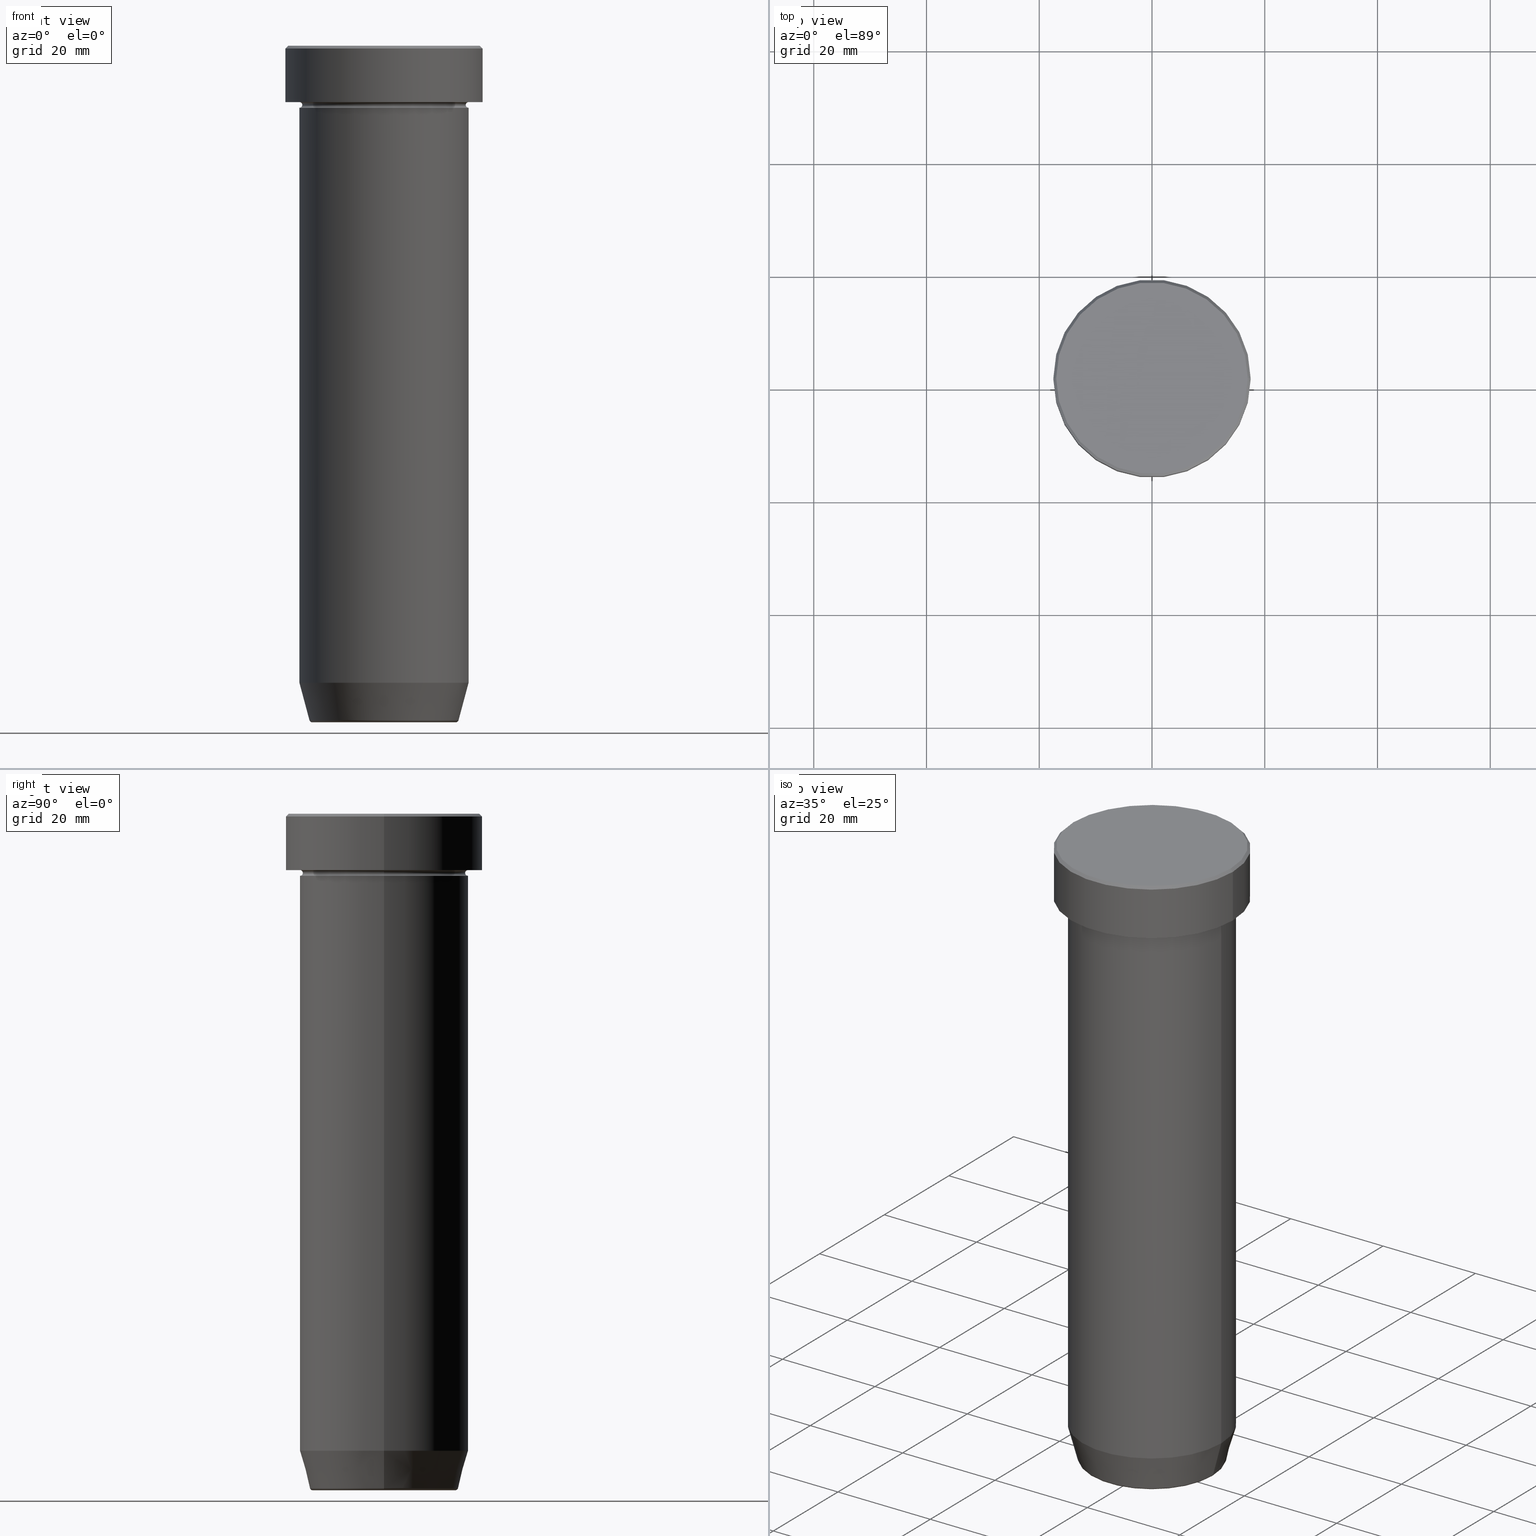
[diagram: canonical four-view strip — front | top / right | iso, engineering-drawing reading convention]
A machine part, canonical four-view strip (front | top / right | iso — engineering-drawing reading convention). The complete STEP part file that produces these views, byte-faithful:
ISO-10303-21;
HEADER;
FILE_DESCRIPTION (( 'STEP AP203' ),
    '1' );
FILE_NAME ('ea9e.STEP',
    '2024-01-02T17:39:11',
    ( '' ),
    ( '' ),
    'SwSTEP 2.0',
    'SolidWorks 2019',
    '' );
FILE_SCHEMA (( 'CONFIG_CONTROL_DESIGN' ));
ENDSEC;

DATA;
#1 = DIRECTION ( 'NONE',  ( -0.000000000000000000, -0.000000000000000000, 1.000000000000000000 ) ) ;
#2 = DIRECTION ( 'NONE',  ( 0.000000000000000000, 0.000000000000000000, -1.000000000000000000 ) ) ;
#3 = SECURITY_CLASSIFICATION ( '', '', #124 ) ;
#4 = FACE_OUTER_BOUND ( 'NONE', #442, .T. ) ;
#5 = DIRECTION ( 'NONE',  ( 1.000000000000000000, 0.000000000000000000, 0.000000000000000000 ) ) ;
#6 = ADVANCED_FACE ( 'NONE', ( #368 ), #462, .T. ) ;
#7 = CIRCLE ( 'NONE', #113, 15.00000000000000000 ) ;
#8 = LINE ( 'NONE', #46, #443 ) ;
#9 = CARTESIAN_POINT ( 'NONE',  ( 0.000000000000000000, 0.000000000000000000, -0.5000000000000073275 ) ) ;
#10 = DIRECTION ( 'NONE',  ( -0.000000000000000000, -0.000000000000000000, 1.000000000000000000 ) ) ;
#11 = ORIENTED_EDGE ( 'NONE', *, *, #263, .T. ) ;
#12 = CARTESIAN_POINT ( 'NONE',  ( 0.000000000000000000, 0.000000000000000000, -112.9999999999999858 ) ) ;
#13 = AXIS2_PLACEMENT_3D ( 'NONE', #510, #466, #228 ) ;
#14 = ADVANCED_FACE ( 'NONE', ( #175 ), #552, .T. ) ;
#15 = DIRECTION ( 'NONE',  ( 0.000000000000000000, 0.000000000000000000, -1.000000000000000000 ) ) ;
#16 = CIRCLE ( 'NONE', #95, 17.00000000000000000 ) ;
#17 = ORIENTED_EDGE ( 'NONE', *, *, #282, .T. ) ;
#18 = DIRECTION ( 'NONE',  ( -0.000000000000000000, -0.000000000000000000, 1.000000000000000000 ) ) ;
#19 =( LENGTH_UNIT ( ) NAMED_UNIT ( * ) SI_UNIT ( .MILLI., .METRE. ) );
#20 = EDGE_LOOP ( 'NONE', ( #216, #122 ) ) ;
#21 = LINE ( 'NONE', #348, #233 ) ;
#22 = PERSON_AND_ORGANIZATION_ROLE ( 'design_owner' ) ;
#23 = EDGE_LOOP ( 'NONE', ( #585, #475, #196, #404 ) ) ;
#24 = CIRCLE ( 'NONE', #471, 15.00000000000000000 ) ;
#25 = EDGE_CURVE ( 'NONE', #207, #68, #421, .T. ) ;
#26 = DIRECTION ( 'NONE',  ( -1.000000000000000000, 0.000000000000000000, 0.000000000000000000 ) ) ;
#27 = AXIS2_PLACEMENT_3D ( 'NONE', #509, #90, #597 ) ;
#28 = APPROVAL_DATE_TIME ( #396, #287 ) ;
#29 = EDGE_LOOP ( 'NONE', ( #447, #314 ) ) ;
#30 = DESIGN_CONTEXT ( 'detailed design', #569, 'design' ) ;
#31 = DIRECTION ( 'NONE',  ( -0.000000000000000000, -0.000000000000000000, 1.000000000000000000 ) ) ;
#32 = ORIENTED_EDGE ( 'NONE', *, *, #292, .F. ) ;
#33 = DATE_TIME_ROLE ( 'classification_date' ) ;
#34 = ORIENTED_EDGE ( 'NONE', *, *, #561, .F. ) ;
#35 = ORIENTED_EDGE ( 'NONE', *, *, #226, .F. ) ;
#36 = CALENDAR_DATE ( 2024, 2, 1 ) ;
#37 = VERTEX_POINT ( 'NONE', #85 ) ;
#38 = DIRECTION ( 'NONE',  ( -0.000000000000000000, -0.000000000000000000, 1.000000000000000000 ) ) ;
#39 = EDGE_CURVE ( 'NONE', #361, #207, #319, .T. ) ;
#40 = AXIS2_PLACEMENT_3D ( 'NONE', #337, #572, #417 ) ;
#41 = VECTOR ( 'NONE', #370, 1000.000000000000000 ) ;
#42 = ORIENTED_EDGE ( 'NONE', *, *, #408, .T. ) ;
#43 = CARTESIAN_POINT ( 'NONE',  ( -13.22365507213719660, 1.728200442216588780E-15, -119.6294095225512564 ) ) ;
#44 = EDGE_CURVE ( 'NONE', #157, #495, #176, .T. ) ;
#45 = CARTESIAN_POINT ( 'NONE',  ( 0.000000000000000000, 0.000000000000000000, 0.000000000000000000 ) ) ;
#46 = CARTESIAN_POINT ( 'NONE',  ( 15.00000000000000000, 0.000000000000000000, 0.000000000000000000 ) ) ;
#47 = FACE_BOUND ( 'NONE', #264, .T. ) ;
#48 = EDGE_CURVE ( 'NONE', #361, #157, #515, .T. ) ;
#49 = FACE_OUTER_BOUND ( 'NONE', #252, .T. ) ;
#50 = DIRECTION ( 'NONE',  ( -0.000000000000000000, -0.000000000000000000, 1.000000000000000000 ) ) ;
#51 = DIRECTION ( 'NONE',  ( 1.000000000000000000, 0.000000000000000000, 0.000000000000000000 ) ) ;
#52 = CLOSED_SHELL ( 'NONE', ( #84, #358, #474, #347, #14, #360, #367, #6, #179, #460, #104, #519, #193 ) ) ;
#53 = DIRECTION ( 'NONE',  ( -0.000000000000000000, -0.000000000000000000, 1.000000000000000000 ) ) ;
#54 = CC_DESIGN_PERSON_AND_ORGANIZATION_ASSIGNMENT ( #596, #221, ( #3 ) ) ;
#55 = ORIENTED_EDGE ( 'NONE', *, *, #485, .F. ) ;
#56 = PLANE ( 'NONE',  #145 ) ;
#57 = MECHANICAL_CONTEXT ( 'NONE', #448, 'mechanical' ) ;
#58 = LOCAL_TIME ( 18, 39, 11.00000000000000000, #351 ) ;
#59 = ORIENTED_EDGE ( 'NONE', *, *, #592, .F. ) ;
#60 = FACE_OUTER_BOUND ( 'NONE', #387, .T. ) ;
#61 = CARTESIAN_POINT ( 'NONE',  ( 0.000000000000000000, 0.000000000000000000, -10.49999999999999822 ) ) ;
#62 = ORIENTED_EDGE ( 'NONE', *, *, #573, .T. ) ;
#63 = AXIS2_PLACEMENT_3D ( 'NONE', #232, #420, #197 ) ;
#64 = AXIS2_PLACEMENT_3D ( 'NONE', #444, #31, #69 ) ;
#65 = CARTESIAN_POINT ( 'NONE',  ( -15.00000000000000000, 1.836970198721029589E-15, -11.00000000000000000 ) ) ;
#66 = CONICAL_SURFACE ( 'NONE', #567, 17.00000000000000000, 0.7853981633974415066 ) ;
#67 = PLANE ( 'NONE',  #289 ) ;
#68 = VERTEX_POINT ( 'NONE', #127 ) ;
#69 = DIRECTION ( 'NONE',  ( 1.000000000000000000, 0.000000000000000000, 0.000000000000000000 ) ) ;
#70 = EDGE_CURVE ( 'NONE', #207, #495, #140, .T. ) ;
#71 = CARTESIAN_POINT ( 'NONE',  ( 0.000000000000000000, 0.000000000000000000, 0.000000000000000000 ) ) ;
#72 = ORIENTED_EDGE ( 'NONE', *, *, #246, .F. ) ;
#73 = APPROVAL_PERSON_ORGANIZATION ( #258, #287, #446 ) ;
#74 = FACE_OUTER_BOUND ( 'NONE', #521, .T. ) ;
#75 = APPROVAL_DATE_TIME ( #210, #82 ) ;
#76 = ORIENTED_EDGE ( 'NONE', *, *, #582, .T. ) ;
#77 = DIRECTION ( 'NONE',  ( 1.000000000000000000, 0.000000000000000000, 0.000000000000000000 ) ) ;
#78 = EDGE_LOOP ( 'NONE', ( #83, #295, #538, #133 ) ) ;
#79 = COORDINATED_UNIVERSAL_TIME_OFFSET ( 1, 0, .AHEAD. ) ;
#80 = VERTEX_POINT ( 'NONE', #401 ) ;
#81 = CARTESIAN_POINT ( 'NONE',  ( -15.00000000000000000, 1.836970198721029589E-15, -10.49999999999999822 ) ) ;
#82 = APPROVAL ( #206, 'NEUR�EN�' ) ;
#83 = ORIENTED_EDGE ( 'NONE', *, *, #251, .F. ) ;
#84 = ADVANCED_FACE ( 'NONE', ( #313 ), #309, .T. ) ;
#85 = CARTESIAN_POINT ( 'NONE',  ( 17.50000000000000000, 0.000000000000000000, -9.999999999999998224 ) ) ;
#86 = DIRECTION ( 'NONE',  ( 1.000000000000000000, 0.000000000000000000, 0.000000000000000000 ) ) ;
#87 = TOROIDAL_SURFACE ( 'NONE', #323, 12.74069215899265473, 0.5000000000000000000 ) ;
#88 = SHAPE_DEFINITION_REPRESENTATION ( #237, #326 ) ;
#89 = AXIS2_PLACEMENT_3D ( 'NONE', #413, #2, #142 ) ;
#90 = DIRECTION ( 'NONE',  ( -0.000000000000000000, -0.000000000000000000, 1.000000000000000000 ) ) ;
#91 = EDGE_CURVE ( 'NONE', #102, #37, #394, .T. ) ;
#92 = CC_DESIGN_PERSON_AND_ORGANIZATION_ASSIGNMENT ( #265, #311, ( #141 ) ) ;
#93 = CARTESIAN_POINT ( 'NONE',  ( -17.50000000000000000, 2.143131898507868248E-15, -0.5000000000000073275 ) ) ;
#94 = CARTESIAN_POINT ( 'NONE',  ( 15.00000000000000000, 0.000000000000000000, -36.00000000000000000 ) ) ;
#95 = AXIS2_PLACEMENT_3D ( 'NONE', #280, #410, #511 ) ;
#96 = FACE_OUTER_BOUND ( 'NONE', #526, .T. ) ;
#97 = DIRECTION ( 'NONE',  ( 1.000000000000000000, 0.000000000000000000, 0.000000000000000000 ) ) ;
#98 = CARTESIAN_POINT ( 'NONE',  ( 0.000000000000000000, 0.000000000000000000, -36.00000000000000000 ) ) ;
#99 = DIRECTION ( 'NONE',  ( 0.000000000000000000, 0.000000000000000000, -1.000000000000000000 ) ) ;
#100 = AXIS2_PLACEMENT_3D ( 'NONE', #12, #380, #484 ) ;
#101 = CYLINDRICAL_SURFACE ( 'NONE', #40, 15.00000000000000000 ) ;
#102 = VERTEX_POINT ( 'NONE', #269 ) ;
#103 = AXIS2_PLACEMENT_3D ( 'NONE', #463, #329, #559 ) ;
#104 = ADVANCED_FACE ( 'NONE', ( #595 ), #591, .F. ) ;
#105 = ORIENTED_EDGE ( 'NONE', *, *, #331, .F. ) ;
#106 = DIRECTION ( 'NONE',  ( -0.000000000000000000, -0.000000000000000000, 1.000000000000000000 ) ) ;
#107 = LOCAL_TIME ( 18, 39, 11.00000000000000000, #79 ) ;
#108 = CIRCLE ( 'NONE', #315, 17.00000000000000000 ) ;
#109 = ORIENTED_EDGE ( 'NONE', *, *, #91, .T. ) ;
#110 = DIRECTION ( 'NONE',  ( -0.2588190451025210725, 3.169619151431769255E-17, 0.9659258262890680902 ) ) ;
#111 = APPLICATION_PROTOCOL_DEFINITION ( 'international standard', 'config_control_design', 1994, #569 ) ;
#112 = VERTEX_POINT ( 'NONE', #43 ) ;
#113 = AXIS2_PLACEMENT_3D ( 'NONE', #199, #386, #470 ) ;
#114 = EDGE_CURVE ( 'NONE', #530, #112, #327, .T. ) ;
#115 = CARTESIAN_POINT ( 'NONE',  ( 15.00000000000000000, 0.000000000000000000, -112.9999999999999858 ) ) ;
#116 = CIRCLE ( 'NONE', #190, 12.74069215899265473 ) ;
#117 = FACE_OUTER_BOUND ( 'NONE', #78, .T. ) ;
#118 = EDGE_CURVE ( 'NONE', #431, #435, #415, .T. ) ;
#119 = ORIENTED_EDGE ( 'NONE', *, *, #25, .F. ) ;
#120 = DIRECTION ( 'NONE',  ( 1.000000000000000000, 0.000000000000000000, 0.000000000000000000 ) ) ;
#121 = DIRECTION ( 'NONE',  ( -0.000000000000000000, -0.000000000000000000, 1.000000000000000000 ) ) ;
#122 = ORIENTED_EDGE ( 'NONE', *, *, #226, .T. ) ;
#123 = CARTESIAN_POINT ( 'NONE',  ( 17.00000000000000000, 2.081899558550500280E-15, 0.000000000000000000 ) ) ;
#124 = SECURITY_CLASSIFICATION_LEVEL ( 'unclassified' ) ;
#125 = ORIENTED_EDGE ( 'NONE', *, *, #599, .F. ) ;
#126 = VECTOR ( 'NONE', #350, 1000.000000000000000 ) ;
#127 = CARTESIAN_POINT ( 'NONE',  ( -15.00000000000000000, 0.000000000000000000, -9.999999999999998224 ) ) ;
#128 = APPROVAL_STATUS ( 'not_yet_approved' ) ;
#129 = EDGE_CURVE ( 'NONE', #218, #435, #225, .T. ) ;
#130 = ORIENTED_EDGE ( 'NONE', *, *, #160, .F. ) ;
#131 = DIRECTION ( 'NONE',  ( -0.000000000000000000, -0.000000000000000000, 1.000000000000000000 ) ) ;
#132 = APPROVAL_STATUS ( 'not_yet_approved' ) ;
#133 = ORIENTED_EDGE ( 'NONE', *, *, #282, .F. ) ;
#134 = CIRCLE ( 'NONE', #399, 0.5000000000000004441 ) ;
#135 = CARTESIAN_POINT ( 'NONE',  ( 15.00000000000000000, 0.000000000000000000, -10.49999999999999822 ) ) ;
#136 = DATE_AND_TIME ( #584, #58 ) ;
#137 = DIRECTION ( 'NONE',  ( -0.000000000000000000, -1.000000000000000000, -0.000000000000000000 ) ) ;
#138 = VECTOR ( 'NONE', #494, 1000.000000000000000 ) ;
#139 = PERSON_AND_ORGANIZATION_ROLE ( 'creator' ) ;
#140 = CIRCLE ( 'NONE', #473, 0.5000000000000004441 ) ;
#141 = PRODUCT_DEFINITION ( 'NEZN�M�', '', #452, #30 ) ;
#142 = DIRECTION ( 'NONE',  ( -1.000000000000000000, 0.000000000000000000, -0.000000000000000000 ) ) ;
#143 = CARTESIAN_POINT ( 'NONE',  ( -14.49999999999999822, 1.806354028742345802E-15, -10.49999999999999822 ) ) ;
#144 = DIRECTION ( 'NONE',  ( -0.000000000000000000, -0.000000000000000000, 1.000000000000000000 ) ) ;
#145 = AXIS2_PLACEMENT_3D ( 'NONE', #155, #333, #522 ) ;
#146 = CONICAL_SURFACE ( 'NONE', #185, 13.12435565298213547, 0.2617993877991497964 ) ;
#147 = EDGE_CURVE ( 'NONE', #152, #593, #208, .T. ) ;
#148 = AXIS2_PLACEMENT_3D ( 'NONE', #217, #131, #499 ) ;
#149 = CARTESIAN_POINT ( 'NONE',  ( -12.74069215899265473, 1.560284787143213506E-15, -119.5000000000000000 ) ) ;
#150 = PLANE ( 'NONE',  #63 ) ;
#151 = CARTESIAN_POINT ( 'NONE',  ( 0.000000000000000000, 0.000000000000000000, -36.00000000000000000 ) ) ;
#152 = VERTEX_POINT ( 'NONE', #93 ) ;
#153 = FACE_OUTER_BOUND ( 'NONE', #20, .T. ) ;
#154 = CARTESIAN_POINT ( 'NONE',  ( -15.00000000000000000, 1.836970198721029589E-15, -36.00000000000000000 ) ) ;
#155 = CARTESIAN_POINT ( 'NONE',  ( 0.000000000000000000, 0.000000000000000000, -36.00000000000000000 ) ) ;
#156 = DIRECTION ( 'NONE',  ( -0.000000000000000000, -0.000000000000000000, 1.000000000000000000 ) ) ;
#157 = VERTEX_POINT ( 'NONE', #275 ) ;
#158 = LINE ( 'NONE', #422, #456 ) ;
#159 = AXIS2_PLACEMENT_3D ( 'NONE', #71, #525, #302 ) ;
#160 = EDGE_CURVE ( 'NONE', #236, #157, #8, .T. ) ;
#161 = ORIENTED_EDGE ( 'NONE', *, *, #402, .F. ) ;
#162 = DIRECTION ( 'NONE',  ( -0.000000000000000000, -0.000000000000000000, 1.000000000000000000 ) ) ;
#163 = EDGE_LOOP ( 'NONE', ( #312, #581, #261, #586 ) ) ;
#164 = CONICAL_SURFACE ( 'NONE', #244, 13.12435565298213547, 0.2617993877991497964 ) ;
#165 = CARTESIAN_POINT ( 'NONE',  ( 12.74069215899265473, 0.000000000000000000, -120.0000000000000000 ) ) ;
#166 = APPROVAL_ROLE ( '' ) ;
#167 = ORIENTED_EDGE ( 'NONE', *, *, #183, .F. ) ;
#168 = DIRECTION ( 'NONE',  ( 1.000000000000000000, 0.000000000000000000, 0.000000000000000000 ) ) ;
#169 = PERSON_AND_ORGANIZATION ( #441, #451 ) ;
#170 = ORIENTED_EDGE ( 'NONE', *, *, #44, .F. ) ;
#171 = ORIENTED_EDGE ( 'NONE', *, *, #582, .F. ) ;
#172 = PERSON_AND_ORGANIZATION ( #441, #451 ) ;
#173 = ORIENTED_EDGE ( 'NONE', *, *, #118, .T. ) ;
#174 = AXIS2_PLACEMENT_3D ( 'NONE', #476, #99, #283 ) ;
#175 = FACE_OUTER_BOUND ( 'NONE', #536, .T. ) ;
#176 = CIRCLE ( 'NONE', #27, 15.00000000000000000 ) ;
#177 = EDGE_LOOP ( 'NONE', ( #105, #498, #55, #34 ) ) ;
#178 = DIRECTION ( 'NONE',  ( 0.000000000000000000, 0.000000000000000000, -1.000000000000000000 ) ) ;
#179 = ADVANCED_FACE ( 'NONE', ( #47, #96 ), #227, .T. ) ;
#180 = DIRECTION ( 'NONE',  ( -0.000000000000000000, -0.000000000000000000, 1.000000000000000000 ) ) ;
#181 = DIRECTION ( 'NONE',  ( 1.000000000000000000, 0.000000000000000000, 0.000000000000000000 ) ) ;
#182 = FACE_OUTER_BOUND ( 'NONE', #376, .T. ) ;
#183 = EDGE_CURVE ( 'NONE', #207, #361, #346, .T. ) ;
#184 = CARTESIAN_POINT ( 'NONE',  ( 0.000000000000000000, 0.000000000000000000, -112.9999999999999858 ) ) ;
#185 = AXIS2_PLACEMENT_3D ( 'NONE', #297, #209, #77 ) ;
#186 = DIRECTION ( 'NONE',  ( -0.000000000000000000, -0.000000000000000000, 1.000000000000000000 ) ) ;
#187 = AXIS2_PLACEMENT_3D ( 'NONE', #151, #560, #5 ) ;
#188 = VECTOR ( 'NONE', #110, 1000.000000000000114 ) ;
#189 = CC_DESIGN_PERSON_AND_ORGANIZATION_ASSIGNMENT ( #169, #542, ( #452 ) ) ;
#190 = AXIS2_PLACEMENT_3D ( 'NONE', #371, #419, #514 ) ;
#191 = DIRECTION ( 'NONE',  ( -0.000000000000000000, -0.000000000000000000, 1.000000000000000000 ) ) ;
#192 = ORIENTED_EDGE ( 'NONE', *, *, #402, .T. ) ;
#193 = ADVANCED_FACE ( 'NONE', ( #4 ), #66, .T. ) ;
#194 = DIRECTION ( 'NONE',  ( 1.000000000000000000, 0.000000000000000000, 0.000000000000000000 ) ) ;
#195 = DIRECTION ( 'NONE',  ( 1.000000000000000000, 0.000000000000000000, 0.000000000000000000 ) ) ;
#196 = ORIENTED_EDGE ( 'NONE', *, *, #549, .F. ) ;
#197 = DIRECTION ( 'NONE',  ( 1.000000000000000000, 0.000000000000000000, 0.000000000000000000 ) ) ;
#198 = CARTESIAN_POINT ( 'NONE',  ( 0.000000000000000000, 0.000000000000000000, -11.00000000000000000 ) ) ;
#199 = CARTESIAN_POINT ( 'NONE',  ( 0.000000000000000000, 0.000000000000000000, -9.999999999999998224 ) ) ;
#200 = DIRECTION ( 'NONE',  ( -0.7071067811865426878, 0.000000000000000000, -0.7071067811865524577 ) ) ;
#201 = ORIENTED_EDGE ( 'NONE', *, *, #147, .T. ) ;
#202 = CARTESIAN_POINT ( 'NONE',  ( 0.000000000000000000, 0.000000000000000000, -119.6294095225512564 ) ) ;
#203 = CARTESIAN_POINT ( 'NONE',  ( 12.74069215899265473, 0.000000000000000000, -119.5000000000000000 ) ) ;
#204 = CC_DESIGN_APPROVAL ( #414, ( #3 ) ) ;
#205 = EDGE_LOOP ( 'NONE', ( #211, #286 ) ) ;
#206 = APPROVAL_STATUS ( 'not_yet_approved' ) ;
#207 = VERTEX_POINT ( 'NONE', #143 ) ;
#208 = CIRCLE ( 'NONE', #103, 17.50000000000000000 ) ;
#209 = DIRECTION ( 'NONE',  ( -0.000000000000000000, -0.000000000000000000, 1.000000000000000000 ) ) ;
#210 = DATE_AND_TIME ( #455, #321 ) ;
#211 = ORIENTED_EDGE ( 'NONE', *, *, #505, .F. ) ;
#212 = MANIFOLD_SOLID_BREP ( 'Zaoblit4', #356 ) ;
#213 = CARTESIAN_POINT ( 'NONE',  ( -13.12435565298213547, 1.607270014129604385E-15, -120.0000000000000000 ) ) ;
#214 = VERTEX_POINT ( 'NONE', #322 ) ;
#215 = APPROVAL_ROLE ( '' ) ;
#216 = ORIENTED_EDGE ( 'NONE', *, *, #512, .T. ) ;
#217 = CARTESIAN_POINT ( 'NONE',  ( 0.000000000000000000, 0.000000000000000000, 0.000000000000000000 ) ) ;
#218 = VERTEX_POINT ( 'NONE', #277 ) ;
#219 = TOROIDAL_SURFACE ( 'NONE', #403, 15.00000000000000000, 0.5000000000000000000 ) ;
#220 = DIRECTION ( 'NONE',  ( 0.000000000000000000, 0.000000000000000000, -1.000000000000000000 ) ) ;
#221 = PERSON_AND_ORGANIZATION_ROLE ( 'classification_officer' ) ;
#222 = ORIENTED_EDGE ( 'NONE', *, *, #573, .F. ) ;
#223 = CARTESIAN_POINT ( 'NONE',  ( 0.000000000000000000, 0.000000000000000000, -10.49999999999999822 ) ) ;
#224 = DIRECTION ( 'NONE',  ( 0.000000000000000000, 0.000000000000000000, -1.000000000000000000 ) ) ;
#225 = CIRCLE ( 'NONE', #276, 15.00000000000000000 ) ;
#226 = EDGE_CURVE ( 'NONE', #339, #478, #16, .T. ) ;
#227 = PLANE ( 'NONE',  #89 ) ;
#228 = DIRECTION ( 'NONE',  ( -1.000000000000000000, -1.224646799147349509E-16, 0.000000000000000000 ) ) ;
#229 = DIRECTION ( 'NONE',  ( 0.000000000000000000, 0.000000000000000000, -1.000000000000000000 ) ) ;
#230 = CARTESIAN_POINT ( 'NONE',  ( 0.000000000000000000, 0.000000000000000000, -10.49999999999999822 ) ) ;
#231 = TOROIDAL_SURFACE ( 'NONE', #325, 12.74069215899265473, 0.5000000000000000000 ) ;
#232 = CARTESIAN_POINT ( 'NONE',  ( 0.000000000000000000, 0.000000000000000000, 0.000000000000000000 ) ) ;
#233 = VECTOR ( 'NONE', #537, 1000.000000000000114 ) ;
#234 = ADVANCED_FACE ( 'NONE', ( #182 ), #320, .T. ) ;
#235 = CARTESIAN_POINT ( 'NONE',  ( 0.000000000000000000, 0.000000000000000000, -120.0000000000000000 ) ) ;
#236 = VERTEX_POINT ( 'NONE', #94 ) ;
#237 = PRODUCT_DEFINITION_SHAPE ( 'NONE', 'NONE',  #141 ) ;
#238 = FACE_OUTER_BOUND ( 'NONE', #177, .T. ) ;
#239 = TOROIDAL_SURFACE ( 'NONE', #364, 15.00000000000000000, 0.5000000000000000000 ) ;
#240 = LINE ( 'NONE', #392, #281 ) ;
#241 = CC_DESIGN_DATE_AND_TIME_ASSIGNMENT ( #507, #33, ( #3 ) ) ;
#242 = CARTESIAN_POINT ( 'NONE',  ( 14.49999999999999822, 0.000000000000000000, -10.49999999999999822 ) ) ;
#243 = LINE ( 'NONE', #427, #262 ) ;
#244 = AXIS2_PLACEMENT_3D ( 'NONE', #520, #53, #472 ) ;
#245 = ORIENTED_EDGE ( 'NONE', *, *, #433, .F. ) ;
#246 = EDGE_CURVE ( 'NONE', #459, #530, #116, .T. ) ;
#247 = FACE_OUTER_BOUND ( 'NONE', #310, .T. ) ;
#248 = DIRECTION ( 'NONE',  ( 0.000000000000000000, 0.000000000000000000, -1.000000000000000000 ) ) ;
#249 = DIRECTION ( 'NONE',  ( 1.000000000000000000, 0.000000000000000000, 0.000000000000000000 ) ) ;
#250 = LINE ( 'NONE', #439, #138 ) ;
#251 = EDGE_CURVE ( 'NONE', #361, #405, #535, .T. ) ;
#252 = EDGE_LOOP ( 'NONE', ( #453, #72, #354, #125 ) ) ;
#253 = UNCERTAINTY_MEASURE_WITH_UNIT (LENGTH_MEASURE( 1.000000000000000082E-05 ), #19, 'distance_accuracy_value', 'NONE');
#254 = AXIS2_PLACEMENT_3D ( 'NONE', #271, #38, #409 ) ;
#255 = CC_DESIGN_DATE_AND_TIME_ASSIGNMENT ( #136, #363, ( #141 ) ) ;
#256 = CYLINDRICAL_SURFACE ( 'NONE', #64, 15.00000000000000000 ) ;
#257 = ORIENTED_EDGE ( 'NONE', *, *, #292, .T. ) ;
#258 = PERSON_AND_ORGANIZATION ( #441, #451 ) ;
#259 = ORIENTED_EDGE ( 'NONE', *, *, #433, .T. ) ;
#260 = CARTESIAN_POINT ( 'NONE',  ( -15.00000000000000000, 0.000000000000000000, -10.49999999999999822 ) ) ;
#261 = ORIENTED_EDGE ( 'NONE', *, *, #48, .T. ) ;
#262 = VECTOR ( 'NONE', #481, 1000.000000000000000 ) ;
#263 = EDGE_CURVE ( 'NONE', #80, #431, #508, .T. ) ;
#264 = EDGE_LOOP ( 'NONE', ( #259, #17 ) ) ;
#265 = PERSON_AND_ORGANIZATION ( #441, #451 ) ;
#266 = TOROIDAL_SURFACE ( 'NONE', #554, 15.00000000000000000, 0.5000000000000000000 ) ;
#267 = AXIS2_PLACEMENT_3D ( 'NONE', #279, #10, #565 ) ;
#268 = CIRCLE ( 'NONE', #344, 13.22365507213719482 ) ;
#269 = CARTESIAN_POINT ( 'NONE',  ( -17.50000000000000000, 2.143131898507868248E-15, -9.999999999999998224 ) ) ;
#270 = PERSON_AND_ORGANIZATION ( #441, #451 ) ;
#271 = CARTESIAN_POINT ( 'NONE',  ( 0.000000000000000000, 0.000000000000000000, -10.49999999999999822 ) ) ;
#272 = DIRECTION ( 'NONE',  ( 1.000000000000000000, 0.000000000000000000, 0.000000000000000000 ) ) ;
#273 = ADVANCED_FACE ( 'NONE', ( #562 ), #56, .F. ) ;
#274 = AXIS2_PLACEMENT_3D ( 'NONE', #260, #137, #503 ) ;
#275 = CARTESIAN_POINT ( 'NONE',  ( 15.00000000000000000, 0.000000000000000000, -11.00000000000000000 ) ) ;
#276 = AXIS2_PLACEMENT_3D ( 'NONE', #98, #144, #324 ) ;
#277 = CARTESIAN_POINT ( 'NONE',  ( -15.00000000000000000, 1.836970198721029589E-15, -36.00000000000000000 ) ) ;
#278 = PRODUCT_RELATED_PRODUCT_CATEGORY ( 'detail', '', ( #377 ) ) ;
#279 = CARTESIAN_POINT ( 'NONE',  ( 0.000000000000000000, 0.000000000000000000, -9.999999999999998224 ) ) ;
#280 = CARTESIAN_POINT ( 'NONE',  ( 0.000000000000000000, 0.000000000000000000, 0.000000000000000000 ) ) ;
#281 = VECTOR ( 'NONE', #200, 1000.000000000000000 ) ;
#282 = EDGE_CURVE ( 'NONE', #405, #68, #7, .T. ) ;
#283 = DIRECTION ( 'NONE',  ( -1.000000000000000000, 0.000000000000000000, -0.000000000000000000 ) ) ;
#284 = DIRECTION ( 'NONE',  ( -0.000000000000000000, -0.000000000000000000, 1.000000000000000000 ) ) ;
#285 = FACE_OUTER_BOUND ( 'NONE', #493, .T. ) ;
#286 = ORIENTED_EDGE ( 'NONE', *, *, #301, .F. ) ;
#287 = APPROVAL ( #128, 'NEUR�EN�' ) ;
#288 = CYLINDRICAL_SURFACE ( 'NONE', #513, 15.00000000000000000 ) ;
#289 = AXIS2_PLACEMENT_3D ( 'NONE', #423, #580, #438 ) ;
#290 = PERSON_AND_ORGANIZATION ( #441, #451 ) ;
#291 = ORIENTED_EDGE ( 'NONE', *, *, #160, .T. ) ;
#292 = EDGE_CURVE ( 'NONE', #102, #152, #158, .T. ) ;
#293 = CARTESIAN_POINT ( 'NONE',  ( 0.000000000000000000, 0.000000000000000000, -10.49999999999999822 ) ) ;
#294 = PERSON_AND_ORGANIZATION ( #441, #451 ) ;
#295 = ORIENTED_EDGE ( 'NONE', *, *, #39, .T. ) ;
#296 = AXIS2_PLACEMENT_3D ( 'NONE', #135, #544, #220 ) ;
#297 = CARTESIAN_POINT ( 'NONE',  ( 0.000000000000000000, 0.000000000000000000, -120.0000000000000000 ) ) ;
#298 = FACE_OUTER_BOUND ( 'NONE', #29, .T. ) ;
#299 = ORIENTED_EDGE ( 'NONE', *, *, #251, .T. ) ;
#300 = DIRECTION ( 'NONE',  ( -0.000000000000000000, -0.000000000000000000, 1.000000000000000000 ) ) ;
#301 = EDGE_CURVE ( 'NONE', #575, #236, #482, .T. ) ;
#302 = DIRECTION ( 'NONE',  ( 1.000000000000000000, 0.000000000000000000, 0.000000000000000000 ) ) ;
#303 = APPROVAL_PERSON_ORGANIZATION ( #294, #82, #166 ) ;
#304 = ORIENTED_EDGE ( 'NONE', *, *, #129, .T. ) ;
#305 = CARTESIAN_POINT ( 'NONE',  ( -15.00000000000000000, 1.836970198721029589E-15, 0.000000000000000000 ) ) ;
#306 = ORIENTED_EDGE ( 'NONE', *, *, #416, .F. ) ;
#307 = COORDINATED_UNIVERSAL_TIME_OFFSET ( 1, 0, .AHEAD. ) ;
#308 = ORIENTED_EDGE ( 'NONE', *, *, #263, .F. ) ;
#309 = CONICAL_SURFACE ( 'NONE', #486, 17.00000000000000000, 0.7853981633974415066 ) ;
#310 = EDGE_LOOP ( 'NONE', ( #167, #445, #545, #341 ) ) ;
#311 = PERSON_AND_ORGANIZATION_ROLE ( 'creator' ) ;
#312 = ORIENTED_EDGE ( 'NONE', *, *, #70, .F. ) ;
#313 = FACE_OUTER_BOUND ( 'NONE', #400, .T. ) ;
#314 = ORIENTED_EDGE ( 'NONE', *, *, #331, .T. ) ;
#315 = AXIS2_PLACEMENT_3D ( 'NONE', #491, #162, #342 ) ;
#316 = ADVANCED_FACE ( 'NONE', ( #49 ), #87, .T. ) ;
#317 = CARTESIAN_POINT ( 'NONE',  ( 0.000000000000000000, 0.000000000000000000, -9.999999999999998224 ) ) ;
#318 = DIRECTION ( 'NONE',  ( 1.224646799147353207E-16, 1.000000000000000000, 0.000000000000000000 ) ) ;
#319 = CIRCLE ( 'NONE', #254, 14.49999999999999822 ) ;
#320 = CYLINDRICAL_SURFACE ( 'NONE', #458, 15.00000000000000000 ) ;
#321 = LOCAL_TIME ( 18, 39, 11.00000000000000000, #307 ) ;
#322 = CARTESIAN_POINT ( 'NONE',  ( 13.22365507213719660, 0.000000000000000000, -119.6294095225512564 ) ) ;
#323 = AXIS2_PLACEMENT_3D ( 'NONE', #480, #106, #97 ) ;
#324 = DIRECTION ( 'NONE',  ( 1.000000000000000000, 0.000000000000000000, 0.000000000000000000 ) ) ;
#325 = AXIS2_PLACEMENT_3D ( 'NONE', #583, #300, #168 ) ;
#326 = ADVANCED_BREP_SHAPE_REPRESENTATION ( 'ea9e', ( #412, #212, #159 ), #539 ) ;
#327 = CIRCLE ( 'NONE', #369, 0.5000000000000004441 ) ;
#328 = EDGE_CURVE ( 'NONE', #37, #102, #532, .T. ) ;
#329 = DIRECTION ( 'NONE',  ( 0.000000000000000000, 0.000000000000000000, -1.000000000000000000 ) ) ;
#330 = CARTESIAN_POINT ( 'NONE',  ( 0.000000000000000000, 0.000000000000000000, -10.49999999999999822 ) ) ;
#331 = EDGE_CURVE ( 'NONE', #530, #459, #558, .T. ) ;
#332 = AXIS2_PLACEMENT_3D ( 'NONE', #477, #121, #195 ) ;
#333 = DIRECTION ( 'NONE',  ( 0.000000000000000000, 0.000000000000000000, -1.000000000000000000 ) ) ;
#334 = ORIENTED_EDGE ( 'NONE', *, *, #118, .F. ) ;
#335 = FACE_OUTER_BOUND ( 'NONE', #450, .T. ) ;
#336 =( NAMED_UNIT ( * ) PLANE_ANGLE_UNIT ( ) SI_UNIT ( $, .RADIAN. ) );
#337 = CARTESIAN_POINT ( 'NONE',  ( 0.000000000000000000, 0.000000000000000000, 0.000000000000000000 ) ) ;
#338 = EDGE_CURVE ( 'NONE', #593, #152, #343, .T. ) ;
#339 = VERTEX_POINT ( 'NONE', #566 ) ;
#340 = FACE_OUTER_BOUND ( 'NONE', #23, .T. ) ;
#341 = ORIENTED_EDGE ( 'NONE', *, *, #48, .F. ) ;
#342 = DIRECTION ( 'NONE',  ( 1.000000000000000000, 0.000000000000000000, 0.000000000000000000 ) ) ;
#343 = CIRCLE ( 'NONE', #428, 17.50000000000000000 ) ;
#344 = AXIS2_PLACEMENT_3D ( 'NONE', #202, #437, #395 ) ;
#345 = ORIENTED_EDGE ( 'NONE', *, *, #328, .F. ) ;
#346 = CIRCLE ( 'NONE', #411, 14.49999999999999822 ) ;
#347 = ADVANCED_FACE ( 'NONE', ( #60 ), #101, .T. ) ;
#348 = CARTESIAN_POINT ( 'NONE',  ( 13.12435565298213547, 0.000000000000000000, -120.0000000000000000 ) ) ;
#349 = ORIENTED_EDGE ( 'NONE', *, *, #465, .F. ) ;
#350 = DIRECTION ( 'NONE',  ( -0.000000000000000000, -0.000000000000000000, 1.000000000000000000 ) ) ;
#351 = COORDINATED_UNIVERSAL_TIME_OFFSET ( 1, 0, .AHEAD. ) ;
#352 = CC_DESIGN_APPROVAL ( #287, ( #452 ) ) ;
#353 = ORIENTED_EDGE ( 'NONE', *, *, #599, .T. ) ;
#354 = ORIENTED_EDGE ( 'NONE', *, *, #561, .T. ) ;
#355 = AXIS2_PLACEMENT_3D ( 'NONE', #432, #18, #120 ) ;
#356 = CLOSED_SHELL ( 'NONE', ( #390, #449, #234, #273, #372, #381, #531, #316 ) ) ;
#357 = ORIENTED_EDGE ( 'NONE', *, *, #91, .F. ) ;
#358 = ADVANCED_FACE ( 'NONE', ( #374 ), #219, .F. ) ;
#359 = ORIENTED_EDGE ( 'NONE', *, *, #328, .T. ) ;
#360 = ADVANCED_FACE ( 'NONE', ( #524 ), #379, .T. ) ;
#361 = VERTEX_POINT ( 'NONE', #242 ) ;
#362 = EDGE_LOOP ( 'NONE', ( #62, #304 ) ) ;
#363 = DATE_TIME_ROLE ( 'creation_date' ) ;
#364 = AXIS2_PLACEMENT_3D ( 'NONE', #61, #248, #534 ) ;
#365 = DIRECTION ( 'NONE',  ( -1.000000000000000000, 1.224646799147349509E-16, 0.000000000000000000 ) ) ;
#366 = APPROVAL_DATE_TIME ( #440, #414 ) ;
#367 = ADVANCED_FACE ( 'NONE', ( #153 ), #150, .T. ) ;
#368 = FACE_OUTER_BOUND ( 'NONE', #578, .T. ) ;
#369 = AXIS2_PLACEMENT_3D ( 'NONE', #149, #464, #373 ) ;
#370 = DIRECTION ( 'NONE',  ( -0.000000000000000000, -0.000000000000000000, 1.000000000000000000 ) ) ;
#371 = CARTESIAN_POINT ( 'NONE',  ( 0.000000000000000000, 0.000000000000000000, -120.0000000000000000 ) ) ;
#372 = ADVANCED_FACE ( 'NONE', ( #335 ), #288, .T. ) ;
#373 = DIRECTION ( 'NONE',  ( -1.000000000000000000, 1.224646799147353454E-16, 0.000000000000000000 ) ) ;
#374 = FACE_OUTER_BOUND ( 'NONE', #587, .T. ) ;
#375 = DIRECTION ( 'NONE',  ( 1.000000000000000000, 0.000000000000000000, 0.000000000000000000 ) ) ;
#376 = EDGE_LOOP ( 'NONE', ( #424, #192, #222, #334 ) ) ;
#377 = PRODUCT ( 'ea9e', 'ea9e', '', ( #57 ) ) ;
#378 = CC_DESIGN_SECURITY_CLASSIFICATION ( #3, ( #452 ) ) ;
#379 = PLANE ( 'NONE',  #174 ) ;
#380 = DIRECTION ( 'NONE',  ( -0.000000000000000000, -0.000000000000000000, 1.000000000000000000 ) ) ;
#381 = ADVANCED_FACE ( 'NONE', ( #285 ), #164, .T. ) ;
#382 = LINE ( 'NONE', #305, #126 ) ;
#383 = DIRECTION ( 'NONE',  ( -0.000000000000000000, -0.000000000000000000, 1.000000000000000000 ) ) ;
#384 = AXIS2_PLACEMENT_3D ( 'NONE', #317, #506, #86 ) ;
#385 = ORIENTED_EDGE ( 'NONE', *, *, #416, .T. ) ;
#386 = DIRECTION ( 'NONE',  ( -0.000000000000000000, -0.000000000000000000, 1.000000000000000000 ) ) ;
#387 = EDGE_LOOP ( 'NONE', ( #548, #398, #170, #130 ) ) ;
#388 = CIRCLE ( 'NONE', #332, 15.00000000000000000 ) ;
#389 = DIRECTION ( 'NONE',  ( -0.000000000000000000, -0.000000000000000000, 1.000000000000000000 ) ) ;
#390 = ADVANCED_FACE ( 'NONE', ( #238 ), #231, .T. ) ;
#391 = DIRECTION ( 'NONE',  ( -0.000000000000000000, -0.000000000000000000, 1.000000000000000000 ) ) ;
#392 = CARTESIAN_POINT ( 'NONE',  ( -17.00000000000000000, 0.000000000000000000, 0.000000000000000000 ) ) ;
#393 = ORIENTED_EDGE ( 'NONE', *, *, #408, .F. ) ;
#394 = CIRCLE ( 'NONE', #384, 17.50000000000000000 ) ;
#395 = DIRECTION ( 'NONE',  ( -1.000000000000000000, 0.000000000000000000, 0.000000000000000000 ) ) ;
#396 = DATE_AND_TIME ( #553, #407 ) ;
#397 = ORIENTED_EDGE ( 'NONE', *, *, #183, .T. ) ;
#398 = ORIENTED_EDGE ( 'NONE', *, *, #541, .T. ) ;
#399 = AXIS2_PLACEMENT_3D ( 'NONE', #203, #574, #489 ) ;
#400 = EDGE_LOOP ( 'NONE', ( #35, #42, #487, #171 ) ) ;
#401 = CARTESIAN_POINT ( 'NONE',  ( -15.00000000000000000, 1.836970198721029589E-15, -112.9999999999999858 ) ) ;
#402 = EDGE_CURVE ( 'NONE', #80, #218, #382, .T. ) ;
#403 = AXIS2_PLACEMENT_3D ( 'NONE', #330, #15, #517 ) ;
#404 = ORIENTED_EDGE ( 'NONE', *, *, #497, .F. ) ;
#405 = VERTEX_POINT ( 'NONE', #533 ) ;
#406 = DIRECTION ( 'NONE',  ( 1.000000000000000000, 0.000000000000000000, 0.000000000000000000 ) ) ;
#407 = LOCAL_TIME ( 18, 39, 11.00000000000000000, #496 ) ;
#408 = EDGE_CURVE ( 'NONE', #339, #593, #579, .T. ) ;
#409 = DIRECTION ( 'NONE',  ( 1.000000000000000000, 0.000000000000000000, 0.000000000000000000 ) ) ;
#410 = DIRECTION ( 'NONE',  ( -0.000000000000000000, -0.000000000000000000, 1.000000000000000000 ) ) ;
#411 = AXIS2_PLACEMENT_3D ( 'NONE', #230, #556, #272 ) ;
#412 = MANIFOLD_SOLID_BREP ( 'Zkosen�1', #52 ) ;
#413 = CARTESIAN_POINT ( 'NONE',  ( 0.000000000000000000, 17.50000000000000000, -9.999999999999998224 ) ) ;
#414 = APPROVAL ( #132, 'NEUR�EN�' ) ;
#415 = LINE ( 'NONE', #469, #41 ) ;
#416 = EDGE_CURVE ( 'NONE', #37, #593, #250, .T. ) ;
#417 = DIRECTION ( 'NONE',  ( 1.000000000000000000, 0.000000000000000000, 0.000000000000000000 ) ) ;
#418 = AXIS2_PLACEMENT_3D ( 'NONE', #184, #284, #194 ) ;
#419 = DIRECTION ( 'NONE',  ( 0.000000000000000000, 0.000000000000000000, -1.000000000000000000 ) ) ;
#420 = DIRECTION ( 'NONE',  ( 0.000000000000000000, -0.000000000000000000, 1.000000000000000000 ) ) ;
#421 = CIRCLE ( 'NONE', #274, 0.5000000000000004441 ) ;
#422 = CARTESIAN_POINT ( 'NONE',  ( -17.50000000000000000, 2.143131898507868248E-15, 0.000000000000000000 ) ) ;
#423 = CARTESIAN_POINT ( 'NONE',  ( 0.000000000000000000, 8.572527594031472993E-15, -120.0000000000000000 ) ) ;
#424 = ORIENTED_EDGE ( 'NONE', *, *, #549, .T. ) ;
#425 = AXIS2_PLACEMENT_3D ( 'NONE', #529, #156, #577 ) ;
#426 = DIRECTION ( 'NONE',  ( 1.000000000000000000, 0.000000000000000000, 0.000000000000000000 ) ) ;
#427 = CARTESIAN_POINT ( 'NONE',  ( -15.00000000000000000, 1.836970198721029589E-15, 0.000000000000000000 ) ) ;
#428 = AXIS2_PLACEMENT_3D ( 'NONE', #9, #467, #51 ) ;
#429 = CARTESIAN_POINT ( 'NONE',  ( 0.000000000000000000, 0.000000000000000000, 0.000000000000000000 ) ) ;
#430 =( NAMED_UNIT ( * ) SI_UNIT ( $, .STERADIAN. ) SOLID_ANGLE_UNIT ( ) );
#431 = VERTEX_POINT ( 'NONE', #115 ) ;
#432 = CARTESIAN_POINT ( 'NONE',  ( 0.000000000000000000, 0.000000000000000000, -36.00000000000000000 ) ) ;
#433 = EDGE_CURVE ( 'NONE', #68, #405, #24, .T. ) ;
#434 = CARTESIAN_POINT ( 'NONE',  ( -12.74069215899265473, 1.589857736427680246E-15, -120.0000000000000000 ) ) ;
#435 = VERTEX_POINT ( 'NONE', #488 ) ;
#436 = CIRCLE ( 'NONE', #527, 15.00000000000000000 ) ;
#437 = DIRECTION ( 'NONE',  ( -0.000000000000000000, -0.000000000000000000, 1.000000000000000000 ) ) ;
#438 = DIRECTION ( 'NONE',  ( 1.000000000000000000, 0.000000000000000000, 0.000000000000000000 ) ) ;
#439 = CARTESIAN_POINT ( 'NONE',  ( 17.50000000000000000, 0.000000000000000000, 0.000000000000000000 ) ) ;
#440 = DATE_AND_TIME ( #36, #518 ) ;
#441 = PERSON ( 'NEUR�EN�', 'NEUR�EN�', 'NEUR�EN�', ('NEUR�EN�'), ('NEUR�EN�'), ('NEUR�EN�') ) ;
#442 = EDGE_LOOP ( 'NONE', ( #393, #570, #76, #502 ) ) ;
#443 = VECTOR ( 'NONE', #50, 1000.000000000000000 ) ;
#444 = CARTESIAN_POINT ( 'NONE',  ( 0.000000000000000000, 0.000000000000000000, 0.000000000000000000 ) ) ;
#445 = ORIENTED_EDGE ( 'NONE', *, *, #70, .T. ) ;
#446 = APPROVAL_ROLE ( '' ) ;
#447 = ORIENTED_EDGE ( 'NONE', *, *, #246, .T. ) ;
#448 = APPLICATION_CONTEXT ( 'configuration controlled 3d designs of mechanical parts and assemblies' ) ;
#449 = ADVANCED_FACE ( 'NONE', ( #340 ), #146, .T. ) ;
#450 = EDGE_LOOP ( 'NONE', ( #161, #11, #173, #490 ) ) ;
#451 = ORGANIZATION ( 'NEUR�EN�', 'NEUR�EN�', '' ) ;
#452 = PRODUCT_DEFINITION_FORMATION_WITH_SPECIFIED_SOURCE ( 'LIBOVOLN�', '', #377, .NOT_KNOWN. ) ;
#453 = ORIENTED_EDGE ( 'NONE', *, *, #114, .F. ) ;
#454 = CARTESIAN_POINT ( 'NONE',  ( 0.000000000000000000, 0.000000000000000000, 0.000000000000000000 ) ) ;
#455 = CALENDAR_DATE ( 2024, 2, 1 ) ;
#456 = VECTOR ( 'NONE', #186, 1000.000000000000000 ) ;
#457 = VECTOR ( 'NONE', #540, 1000.000000000000000 ) ;
#458 = AXIS2_PLACEMENT_3D ( 'NONE', #557, #1, #181 ) ;
#459 = VERTEX_POINT ( 'NONE', #165 ) ;
#460 = ADVANCED_FACE ( 'NONE', ( #74 ), #256, .T. ) ;
#461 = CC_DESIGN_PERSON_AND_ORGANIZATION_ASSIGNMENT ( #290, #22, ( #377 ) ) ;
#462 = CYLINDRICAL_SURFACE ( 'NONE', #148, 17.50000000000000000 ) ;
#463 = CARTESIAN_POINT ( 'NONE',  ( 0.000000000000000000, 0.000000000000000000, -0.5000000000000073275 ) ) ;
#464 = DIRECTION ( 'NONE',  ( 1.224646799147353207E-16, 1.000000000000000000, 0.000000000000000000 ) ) ;
#465 = EDGE_CURVE ( 'NONE', #112, #80, #528, .T. ) ;
#466 = DIRECTION ( 'NONE',  ( -1.224646799147353207E-16, 1.000000000000000000, 0.000000000000000000 ) ) ;
#467 = DIRECTION ( 'NONE',  ( 0.000000000000000000, 0.000000000000000000, -1.000000000000000000 ) ) ;
#468 = CIRCLE ( 'NONE', #425, 13.22365507213719482 ) ;
#469 = CARTESIAN_POINT ( 'NONE',  ( 15.00000000000000000, 0.000000000000000000, 0.000000000000000000 ) ) ;
#470 = DIRECTION ( 'NONE',  ( -1.000000000000000000, 0.000000000000000000, 0.000000000000000000 ) ) ;
#471 = AXIS2_PLACEMENT_3D ( 'NONE', #483, #389, #26 ) ;
#472 = DIRECTION ( 'NONE',  ( 1.000000000000000000, 0.000000000000000000, 0.000000000000000000 ) ) ;
#473 = AXIS2_PLACEMENT_3D ( 'NONE', #81, #318, #365 ) ;
#474 = ADVANCED_FACE ( 'NONE', ( #247 ), #266, .F. ) ;
#475 = ORIENTED_EDGE ( 'NONE', *, *, #465, .T. ) ;
#476 = CARTESIAN_POINT ( 'NONE',  ( 0.000000000000000000, 15.00000000000000000, -36.00000000000000000 ) ) ;
#477 = CARTESIAN_POINT ( 'NONE',  ( 0.000000000000000000, 0.000000000000000000, -36.00000000000000000 ) ) ;
#478 = VERTEX_POINT ( 'NONE', #576 ) ;
#479 = APPROVAL_PERSON_ORGANIZATION ( #270, #414, #215 ) ;
#480 = CARTESIAN_POINT ( 'NONE',  ( 0.000000000000000000, 0.000000000000000000, -119.5000000000000000 ) ) ;
#481 = DIRECTION ( 'NONE',  ( -0.000000000000000000, -0.000000000000000000, 1.000000000000000000 ) ) ;
#482 = CIRCLE ( 'NONE', #187, 15.00000000000000000 ) ;
#483 = CARTESIAN_POINT ( 'NONE',  ( 0.000000000000000000, 0.000000000000000000, -9.999999999999998224 ) ) ;
#484 = DIRECTION ( 'NONE',  ( 1.000000000000000000, 0.000000000000000000, 0.000000000000000000 ) ) ;
#485 = EDGE_CURVE ( 'NONE', #214, #112, #268, .T. ) ;
#486 = AXIS2_PLACEMENT_3D ( 'NONE', #454, #178, #550 ) ;
#487 = ORIENTED_EDGE ( 'NONE', *, *, #147, .F. ) ;
#488 = CARTESIAN_POINT ( 'NONE',  ( 15.00000000000000000, 0.000000000000000000, -36.00000000000000000 ) ) ;
#489 = DIRECTION ( 'NONE',  ( 0.000000000000000000, 0.000000000000000000, -1.000000000000000000 ) ) ;
#490 = ORIENTED_EDGE ( 'NONE', *, *, #129, .F. ) ;
#491 = CARTESIAN_POINT ( 'NONE',  ( 0.000000000000000000, 0.000000000000000000, 0.000000000000000000 ) ) ;
#492 = CARTESIAN_POINT ( 'NONE',  ( 17.50000000000000000, 0.000000000000000000, -0.5000000000000073275 ) ) ;
#493 = EDGE_LOOP ( 'NONE', ( #349, #353, #543, #308 ) ) ;
#494 = DIRECTION ( 'NONE',  ( -0.000000000000000000, -0.000000000000000000, 1.000000000000000000 ) ) ;
#495 = VERTEX_POINT ( 'NONE', #65 ) ;
#496 = COORDINATED_UNIVERSAL_TIME_OFFSET ( 1, 0, .AHEAD. ) ;
#497 = EDGE_CURVE ( 'NONE', #214, #431, #21, .T. ) ;
#498 = ORIENTED_EDGE ( 'NONE', *, *, #114, .T. ) ;
#499 = DIRECTION ( 'NONE',  ( 1.000000000000000000, 0.000000000000000000, 0.000000000000000000 ) ) ;
#500 = CIRCLE ( 'NONE', #355, 15.00000000000000000 ) ;
#501 = CALENDAR_DATE ( 2024, 2, 1 ) ;
#502 = ORIENTED_EDGE ( 'NONE', *, *, #338, .F. ) ;
#503 = DIRECTION ( 'NONE',  ( 0.000000000000000000, 0.000000000000000000, -1.000000000000000000 ) ) ;
#504 = ORIENTED_EDGE ( 'NONE', *, *, #301, .T. ) ;
#505 = EDGE_CURVE ( 'NONE', #236, #575, #500, .T. ) ;
#506 = DIRECTION ( 'NONE',  ( -0.000000000000000000, -0.000000000000000000, 1.000000000000000000 ) ) ;
#507 = DATE_AND_TIME ( #501, #107 ) ;
#508 = CIRCLE ( 'NONE', #418, 15.00000000000000000 ) ;
#509 = CARTESIAN_POINT ( 'NONE',  ( 0.000000000000000000, 0.000000000000000000, -11.00000000000000000 ) ) ;
#510 = CARTESIAN_POINT ( 'NONE',  ( 15.00000000000000000, 1.836970198721029589E-15, -10.49999999999999822 ) ) ;
#511 = DIRECTION ( 'NONE',  ( 1.000000000000000000, 0.000000000000000000, 0.000000000000000000 ) ) ;
#512 = EDGE_CURVE ( 'NONE', #478, #339, #108, .T. ) ;
#513 = AXIS2_PLACEMENT_3D ( 'NONE', #429, #191, #375 ) ;
#514 = DIRECTION ( 'NONE',  ( 1.000000000000000000, 0.000000000000000000, 0.000000000000000000 ) ) ;
#515 = CIRCLE ( 'NONE', #296, 0.5000000000000004441 ) ;
#516 = DIRECTION ( 'NONE',  ( -1.000000000000000000, 0.000000000000000000, 0.000000000000000000 ) ) ;
#517 = DIRECTION ( 'NONE',  ( -1.000000000000000000, 0.000000000000000000, 0.000000000000000000 ) ) ;
#518 = LOCAL_TIME ( 18, 39, 11.00000000000000000, #594 ) ;
#519 = ADVANCED_FACE ( 'NONE', ( #117 ), #239, .F. ) ;
#520 = CARTESIAN_POINT ( 'NONE',  ( 0.000000000000000000, 0.000000000000000000, -120.0000000000000000 ) ) ;
#521 = EDGE_LOOP ( 'NONE', ( #564, #504, #291, #59 ) ) ;
#522 = DIRECTION ( 'NONE',  ( -1.000000000000000000, 0.000000000000000000, -0.000000000000000000 ) ) ;
#523 = APPLICATION_PROTOCOL_DEFINITION ( 'international standard', 'config_control_design', 1994, #448 ) ;
#524 = FACE_OUTER_BOUND ( 'NONE', #205, .T. ) ;
#525 = DIRECTION ( 'NONE',  ( 0.000000000000000000, 0.000000000000000000, 1.000000000000000000 ) ) ;
#526 = EDGE_LOOP ( 'NONE', ( #345, #357 ) ) ;
#527 = AXIS2_PLACEMENT_3D ( 'NONE', #198, #383, #568 ) ;
#528 = LINE ( 'NONE', #213, #188 ) ;
#529 = CARTESIAN_POINT ( 'NONE',  ( 0.000000000000000000, 0.000000000000000000, -119.6294095225512564 ) ) ;
#530 = VERTEX_POINT ( 'NONE', #434 ) ;
#531 = ADVANCED_FACE ( 'NONE', ( #298 ), #67, .F. ) ;
#532 = CIRCLE ( 'NONE', #267, 17.50000000000000000 ) ;
#533 = CARTESIAN_POINT ( 'NONE',  ( 15.00000000000000000, 1.836970198721029589E-15, -9.999999999999998224 ) ) ;
#534 = DIRECTION ( 'NONE',  ( -1.000000000000000000, 0.000000000000000000, 0.000000000000000000 ) ) ;
#535 = CIRCLE ( 'NONE', #13, 0.5000000000000004441 ) ;
#536 = EDGE_LOOP ( 'NONE', ( #359, #257, #201, #306 ) ) ;
#537 = DIRECTION ( 'NONE',  ( 0.2588190451025210725, 0.000000000000000000, 0.9659258262890680902 ) ) ;
#538 = ORIENTED_EDGE ( 'NONE', *, *, #25, .T. ) ;
#539 =( GEOMETRIC_REPRESENTATION_CONTEXT ( 3 ) GLOBAL_UNCERTAINTY_ASSIGNED_CONTEXT ( ( #253 ) ) GLOBAL_UNIT_ASSIGNED_CONTEXT ( ( #19, #336, #430 ) ) REPRESENTATION_CONTEXT ( 'NONE', 'WORKASPACE' ) );
#540 = DIRECTION ( 'NONE',  ( 0.7071067811865426878, 8.659560562354874926E-17, -0.7071067811865524577 ) ) ;
#541 = EDGE_CURVE ( 'NONE', #575, #495, #243, .T. ) ;
#542 = PERSON_AND_ORGANIZATION_ROLE ( 'design_supplier' ) ;
#543 = ORIENTED_EDGE ( 'NONE', *, *, #497, .T. ) ;
#544 = DIRECTION ( 'NONE',  ( 0.000000000000000000, -1.000000000000000000, 0.000000000000000000 ) ) ;
#545 = ORIENTED_EDGE ( 'NONE', *, *, #592, .T. ) ;
#546 = AXIS2_PLACEMENT_3D ( 'NONE', #547, #588, #406 ) ;
#547 = CARTESIAN_POINT ( 'NONE',  ( 0.000000000000000000, 0.000000000000000000, 0.000000000000000000 ) ) ;
#548 = ORIENTED_EDGE ( 'NONE', *, *, #505, .T. ) ;
#549 = EDGE_CURVE ( 'NONE', #431, #80, #563, .T. ) ;
#550 = DIRECTION ( 'NONE',  ( -1.000000000000000000, 0.000000000000000000, 0.000000000000000000 ) ) ;
#551 = CC_DESIGN_APPROVAL ( #82, ( #141 ) ) ;
#552 = CYLINDRICAL_SURFACE ( 'NONE', #546, 17.50000000000000000 ) ;
#553 = CALENDAR_DATE ( 2024, 2, 1 ) ;
#554 = AXIS2_PLACEMENT_3D ( 'NONE', #293, #391, #249 ) ;
#555 = DIRECTION ( 'NONE',  ( 1.000000000000000000, 0.000000000000000000, 0.000000000000000000 ) ) ;
#556 = DIRECTION ( 'NONE',  ( -0.000000000000000000, -0.000000000000000000, 1.000000000000000000 ) ) ;
#557 = CARTESIAN_POINT ( 'NONE',  ( 0.000000000000000000, 0.000000000000000000, 0.000000000000000000 ) ) ;
#558 = CIRCLE ( 'NONE', #589, 12.74069215899265473 ) ;
#559 = DIRECTION ( 'NONE',  ( 1.000000000000000000, 0.000000000000000000, 0.000000000000000000 ) ) ;
#560 = DIRECTION ( 'NONE',  ( -0.000000000000000000, -0.000000000000000000, 1.000000000000000000 ) ) ;
#561 = EDGE_CURVE ( 'NONE', #459, #214, #134, .T. ) ;
#562 = FACE_OUTER_BOUND ( 'NONE', #362, .T. ) ;
#563 = CIRCLE ( 'NONE', #100, 15.00000000000000000 ) ;
#564 = ORIENTED_EDGE ( 'NONE', *, *, #541, .F. ) ;
#565 = DIRECTION ( 'NONE',  ( 1.000000000000000000, 0.000000000000000000, 0.000000000000000000 ) ) ;
#566 = CARTESIAN_POINT ( 'NONE',  ( 17.00000000000000000, 2.112515728529184067E-15, 0.000000000000000000 ) ) ;
#567 = AXIS2_PLACEMENT_3D ( 'NONE', #45, #224, #516 ) ;
#568 = DIRECTION ( 'NONE',  ( 1.000000000000000000, 0.000000000000000000, 0.000000000000000000 ) ) ;
#569 = APPLICATION_CONTEXT ( 'configuration controlled 3d designs of mechanical parts and assemblies' ) ;
#570 = ORIENTED_EDGE ( 'NONE', *, *, #512, .F. ) ;
#571 = CC_DESIGN_PERSON_AND_ORGANIZATION_ASSIGNMENT ( #172, #139, ( #452 ) ) ;
#572 = DIRECTION ( 'NONE',  ( -0.000000000000000000, -0.000000000000000000, 1.000000000000000000 ) ) ;
#573 = EDGE_CURVE ( 'NONE', #435, #218, #388, .T. ) ;
#574 = DIRECTION ( 'NONE',  ( 0.000000000000000000, -1.000000000000000000, 0.000000000000000000 ) ) ;
#575 = VERTEX_POINT ( 'NONE', #154 ) ;
#576 = CARTESIAN_POINT ( 'NONE',  ( -17.00000000000000000, 0.000000000000000000, 0.000000000000000000 ) ) ;
#577 = DIRECTION ( 'NONE',  ( -1.000000000000000000, 0.000000000000000000, 0.000000000000000000 ) ) ;
#578 = EDGE_LOOP ( 'NONE', ( #32, #109, #385, #590 ) ) ;
#579 = LINE ( 'NONE', #123, #457 ) ;
#580 = DIRECTION ( 'NONE',  ( 0.000000000000000000, -0.000000000000000000, 1.000000000000000000 ) ) ;
#581 = ORIENTED_EDGE ( 'NONE', *, *, #39, .F. ) ;
#582 = EDGE_CURVE ( 'NONE', #478, #152, #240, .T. ) ;
#583 = CARTESIAN_POINT ( 'NONE',  ( 0.000000000000000000, 0.000000000000000000, -119.5000000000000000 ) ) ;
#584 = CALENDAR_DATE ( 2024, 2, 1 ) ;
#585 = ORIENTED_EDGE ( 'NONE', *, *, #485, .T. ) ;
#586 = ORIENTED_EDGE ( 'NONE', *, *, #44, .T. ) ;
#587 = EDGE_LOOP ( 'NONE', ( #397, #299, #245, #119 ) ) ;
#588 = DIRECTION ( 'NONE',  ( -0.000000000000000000, -0.000000000000000000, 1.000000000000000000 ) ) ;
#589 = AXIS2_PLACEMENT_3D ( 'NONE', #235, #229, #426 ) ;
#590 = ORIENTED_EDGE ( 'NONE', *, *, #338, .T. ) ;
#591 = TOROIDAL_SURFACE ( 'NONE', #598, 15.00000000000000000, 0.5000000000000000000 ) ;
#592 = EDGE_CURVE ( 'NONE', #495, #157, #436, .T. ) ;
#593 = VERTEX_POINT ( 'NONE', #492 ) ;
#594 = COORDINATED_UNIVERSAL_TIME_OFFSET ( 1, 0, .AHEAD. ) ;
#595 = FACE_OUTER_BOUND ( 'NONE', #163, .T. ) ;
#596 = PERSON_AND_ORGANIZATION ( #441, #451 ) ;
#597 = DIRECTION ( 'NONE',  ( 1.000000000000000000, 0.000000000000000000, 0.000000000000000000 ) ) ;
#598 = AXIS2_PLACEMENT_3D ( 'NONE', #223, #180, #555 ) ;
#599 = EDGE_CURVE ( 'NONE', #112, #214, #468, .T. ) ;
ENDSEC;
END-ISO-10303-21;
